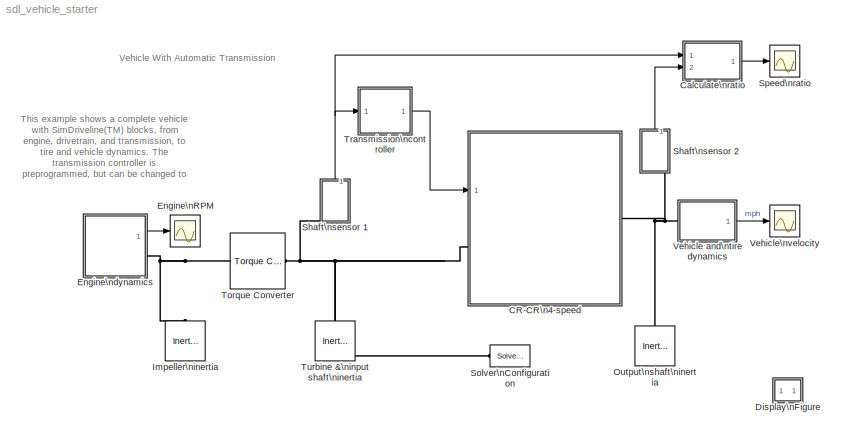
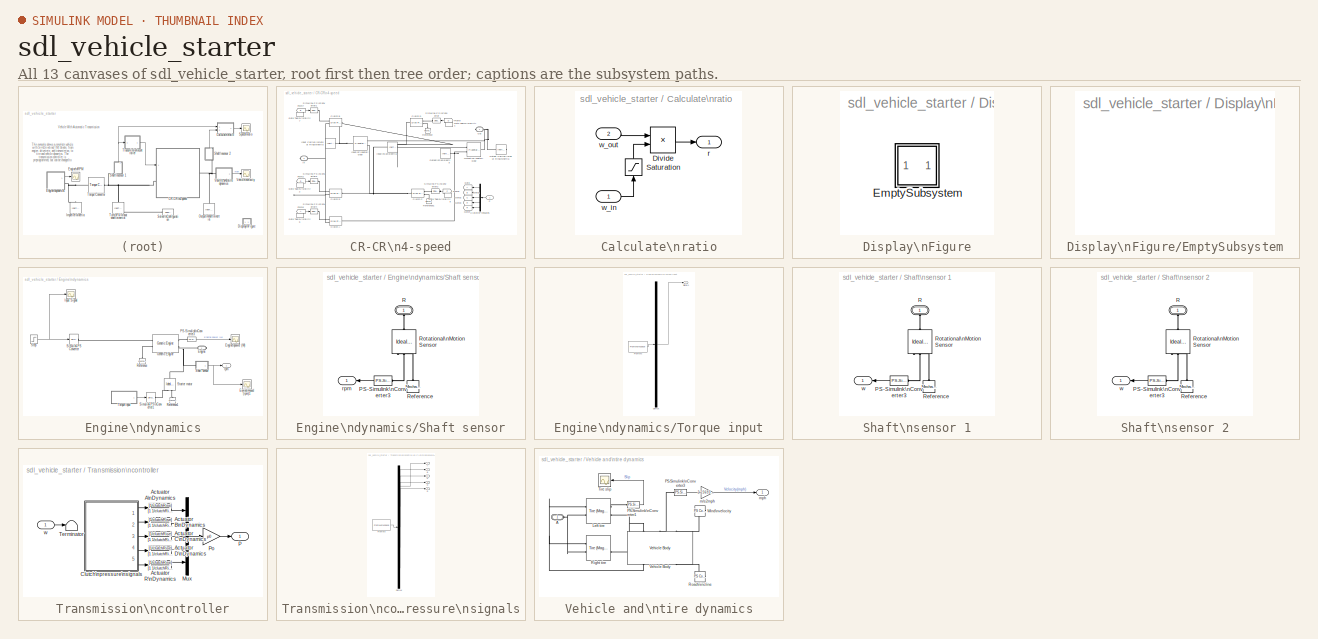
[diagram: thumbnail index - all 13 canvases of the model, root first then tree order]
MODEL sdl_vehicle_starter
KIND model
CONFIG PreLoadFcn = num_fric_surf = 6;\neff_tor_rad = 0.4;\nengagement_area = 0.0025;\npeak_normal = 0.55;\nfric_coeff = 0.5;\nclutchRise = 0.1;\nvelTol = 1e-3;\npressThresh = 0.05;\np0 = 20e5;\n\n\n
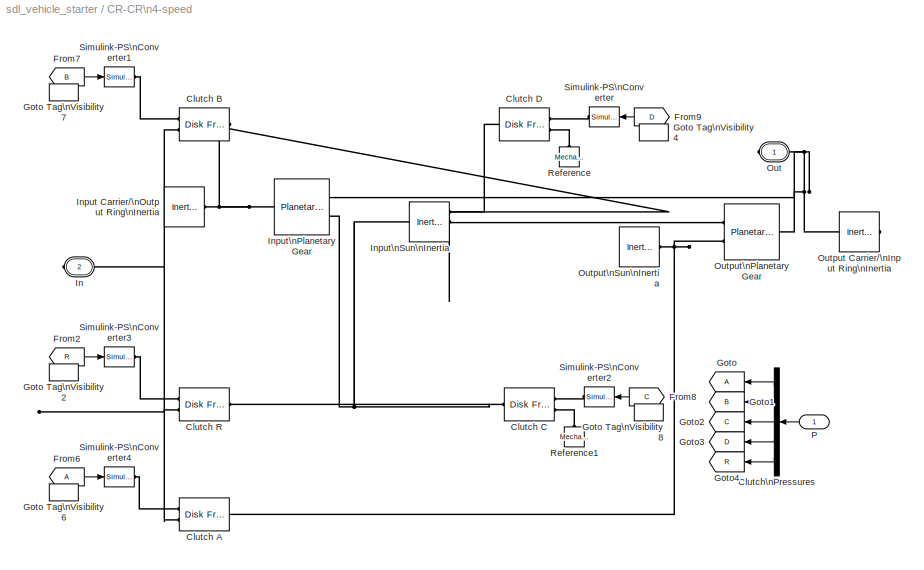
BLOCK [SubSystem] CR-CR\n4-speed
  FunctionWithSeparateData = off
  MaskDescription = This is a template for a CR-CR 4-speed transmission. Copy it to your model, open it as a subsystem, and modify it for your use.
  MaskDisplay = plot(Icon.x1,Icon.y1);\nplot(Icon.x1_1,Icon.y1_1);\nplot(Icon.x2,Icon.y2);\nplot(Icon.x3,Icon.y3);\nplot(Icon.x3_1,Icon.y3_1);\nplot(Icon.x4,Icon.y4);\nplot(Icon.x5,Icon.y5);\nplot(Icon.x6,Icon.y6);\nplot(Icon.x7,Icon.y7);\nplot(Icon.x8,Icon.y8);\nplot(Icon.x9,Icon.y9);\nplot(Icon.x10,Icon.y10);\nplot(Icon.x11,Icon.y11);\nplot(Icon.x12,Icon.y12);\nplot(Icon.x13,Icon.y13);\nplot(Icon.x14,Icon.y14);...<+594ch>
  MaskHelp = web(drive_help);
  MaskHideContents = off
  MaskIconFrame = on
  MaskIconOpaque = off
  MaskIconRotate = port
  MaskIconUnits = autoscale
  MaskInitialization = drive_preinitmask(); Icon = drive_crcrgearblock('Mask');
  MaskPortRotate = default
  MaskSelfModifiable = on
  MaskType = CR-CR 4-Speed
  MinAlgLoopOccurrences = off
  Opaque = off
  OpenFcn = open_system(gcbh,'force');
  Ports = [1, 0, 0, 0, 0, 1, 1]
  PropExecContextOutsideSubsystem = off
  RTWSystemCode = Auto
  RequestExecContextInheritance = off
  SID = 245
BLOCK [Reference] CR-CR\n4-speed/Clutch A  REF=sdl_lib/Clutches/Disk Friction Clutch
  ClassName = disk_friction_clutch
  ComponentPath = sdl.clutches.disk_friction_clutch
  ComponentVariantNames = disk_friction_clutch
  ComponentVariants = sdl.clutches.disk_friction_clutch
  LocalVarLogging = []
  Ports = [0, 0, 0, 0, 0, 2, 1]
  SID = 245:110
  SchemaVersion = 1
  SourceBlock = sdl_lib/Clutches/Disk Friction Clutch
  SourceFile = sdl.clutches.disk_friction_clutch
  SourceType = Disk Friction Clutch
  d_f = 1
  d_f_unit = 1
  d_i = 0.1
  d_i_unit = m
  d_o = 0.15
  d_o_unit = m
  friction_model = 1
  friction_model_unit = 1
  geometry_model = 1
  geometry_model_unit = 1
  initial_state_locked = 1
  initial_state_locked_unit = 1
  mu_coulomb = fric_coeff
  mu_coulomb_unit = 1
  mu_coulomb_vector = [ 0.29 0.28 0.26 0.22 0.21 0.2 0.2 0.19 0.19 0.19 0.19 0.19 ]
  mu_coulomb_vector_unit = 1
  mu_extrap_method = 1
  mu_extrap_method_unit = 1
  mu_interp_method = 1
  mu_interp_method_unit = 1
  mu_static = peak_normal
  mu_static_unit = 1
  mu_visc = 0
  mu_visc_unit = N*m/(rad/s)
  mu_w_vector = [ 0 0.1 0.2 0.3 0.4 0.5 1 2 5 10 100 1000 ]
  mu_w_vector_unit = rad/s
  nS = num_fric_surf
  nS_unit = 1
  piston_area = engagement_area
  piston_area_unit = m^2
  pressure_min = pressThresh*p0
  pressure_min_unit = Pa
  r_eff = eff_tor_rad
  r_eff_unit = m
  w_tol = velTol
  w_tol_unit = rad/s
BLOCK [Reference] CR-CR\n4-speed/Clutch B  REF=sdl_lib/Clutches/Disk Friction Clutch
  ClassName = disk_friction_clutch
  ComponentPath = sdl.clutches.disk_friction_clutch
  ComponentVariantNames = disk_friction_clutch
  ComponentVariants = sdl.clutches.disk_friction_clutch
  LocalVarLogging = []
  Ports = [0, 0, 0, 0, 0, 2, 1]
  SID = 245:107
  SchemaVersion = 1
  SourceBlock = sdl_lib/Clutches/Disk Friction Clutch
  SourceFile = sdl.clutches.disk_friction_clutch
  SourceType = Disk Friction Clutch
  d_f = 1
  d_f_unit = 1
  d_i = 0.1
  d_i_unit = m
  d_o = 0.15
  d_o_unit = m
  friction_model = 1
  friction_model_unit = 1
  geometry_model = 1
  geometry_model_unit = 1
  initial_state_locked = 0
  initial_state_locked_unit = 1
  mu_coulomb = fric_coeff
  mu_coulomb_unit = 1
  mu_coulomb_vector = [ 0.29 0.28 0.26 0.22 0.21 0.2 0.2 0.19 0.19 0.19 0.19 0.19 ]
  mu_coulomb_vector_unit = 1
  mu_extrap_method = 1
  mu_extrap_method_unit = 1
  mu_interp_method = 1
  mu_interp_method_unit = 1
  mu_static = peak_normal
  mu_static_unit = 1
  mu_visc = 0
  mu_visc_unit = N*m/(rad/s)
  mu_w_vector = [ 0 0.1 0.2 0.3 0.4 0.5 1 2 5 10 100 1000 ]
  mu_w_vector_unit = rad/s
  nS = num_fric_surf
  nS_unit = 1
  piston_area = engagement_area
  piston_area_unit = m^2
  pressure_min = pressThresh*p0
  pressure_min_unit = Pa
  r_eff = eff_tor_rad
  r_eff_unit = m
  w_tol = velTol
  w_tol_unit = rad/s
BLOCK [Reference] CR-CR\n4-speed/Clutch C  REF=sdl_lib/Clutches/Disk Friction Clutch
  ClassName = disk_friction_clutch
  ComponentPath = sdl.clutches.disk_friction_clutch
  ComponentVariantNames = disk_friction_clutch
  ComponentVariants = sdl.clutches.disk_friction_clutch
  LocalVarLogging = []
  Ports = [0, 0, 0, 0, 0, 2, 1]
  SID = 245:108
  SchemaVersion = 1
  SourceBlock = sdl_lib/Clutches/Disk Friction Clutch
  SourceFile = sdl.clutches.disk_friction_clutch
  SourceType = Disk Friction Clutch
  d_f = 1
  d_f_unit = 1
  d_i = 0.1
  d_i_unit = m
  d_o = 0.15
  d_o_unit = m
  friction_model = 1
  friction_model_unit = 1
  geometry_model = 1
  geometry_model_unit = 1
  initial_state_locked = 0
  initial_state_locked_unit = 1
  mu_coulomb = fric_coeff
  mu_coulomb_unit = 1
  mu_coulomb_vector = [ 0.29 0.28 0.26 0.22 0.21 0.2 0.2 0.19 0.19 0.19 0.19 0.19 ]
  mu_coulomb_vector_unit = 1
  mu_extrap_method = 1
  mu_extrap_method_unit = 1
  mu_interp_method = 1
  mu_interp_method_unit = 1
  mu_static = peak_normal
  mu_static_unit = 1
  mu_visc = 0
  mu_visc_unit = N*m/(rad/s)
  mu_w_vector = [ 0 0.1 0.2 0.3 0.4 0.5 1 2 5 10 100 1000 ]
  mu_w_vector_unit = rad/s
  nS = num_fric_surf
  nS_unit = 1
  piston_area = engagement_area
  piston_area_unit = m^2
  pressure_min = pressThresh*p0
  pressure_min_unit = Pa
  r_eff = eff_tor_rad
  r_eff_unit = m
  w_tol = velTol
  w_tol_unit = rad/s
BLOCK [Reference] CR-CR\n4-speed/Clutch D  REF=sdl_lib/Clutches/Disk Friction Clutch
  ClassName = disk_friction_clutch
  ComponentPath = sdl.clutches.disk_friction_clutch
  ComponentVariantNames = disk_friction_clutch
  ComponentVariants = sdl.clutches.disk_friction_clutch
  LocalVarLogging = []
  Ports = [0, 0, 0, 0, 0, 2, 1]
  SID = 245:106
  SchemaVersion = 1
  SourceBlock = sdl_lib/Clutches/Disk Friction Clutch
  SourceFile = sdl.clutches.disk_friction_clutch
  SourceType = Disk Friction Clutch
  d_f = 1
  d_f_unit = 1
  d_i = 0.1
  d_i_unit = m
  d_o = 0.15
  d_o_unit = m
  friction_model = 1
  friction_model_unit = 1
  geometry_model = 1
  geometry_model_unit = 1
  initial_state_locked = 1
  initial_state_locked_unit = 1
  mu_coulomb = fric_coeff
  mu_coulomb_unit = 1
  mu_coulomb_vector = [ 0.29 0.28 0.26 0.22 0.21 0.2 0.2 0.19 0.19 0.19 0.19 0.19 ]
  mu_coulomb_vector_unit = 1
  mu_extrap_method = 1
  mu_extrap_method_unit = 1
  mu_interp_method = 1
  mu_interp_method_unit = 1
  mu_static = peak_normal
  mu_static_unit = 1
  mu_visc = 0
  mu_visc_unit = N*m/(rad/s)
  mu_w_vector = [ 0 0.1 0.2 0.3 0.4 0.5 1 2 5 10 100 1000 ]
  mu_w_vector_unit = rad/s
  nS = num_fric_surf
  nS_unit = 1
  piston_area = engagement_area
  piston_area_unit = m^2
  pressure_min = pressThresh*p0
  pressure_min_unit = Pa
  r_eff = eff_tor_rad
  r_eff_unit = m
  w_tol = velTol
  w_tol_unit = rad/s
BLOCK [Reference] CR-CR\n4-speed/Clutch R  REF=sdl_lib/Clutches/Disk Friction Clutch
  ClassName = disk_friction_clutch
  ComponentPath = sdl.clutches.disk_friction_clutch
  ComponentVariantNames = disk_friction_clutch
  ComponentVariants = sdl.clutches.disk_friction_clutch
  LocalVarLogging = []
  Ports = [0, 0, 0, 0, 0, 2, 1]
  SID = 245:109
  SchemaVersion = 1
  SourceBlock = sdl_lib/Clutches/Disk Friction Clutch
  SourceFile = sdl.clutches.disk_friction_clutch
  SourceType = Disk Friction Clutch
  d_f = 1
  d_f_unit = 1
  d_i = 0.1
  d_i_unit = m
  d_o = 0.15
  d_o_unit = m
  friction_model = 1
  friction_model_unit = 1
  geometry_model = 1
  geometry_model_unit = 1
  initial_state_locked = 0
  initial_state_locked_unit = 1
  mu_coulomb = fric_coeff
  mu_coulomb_unit = 1
  mu_coulomb_vector = [ 0.29 0.28 0.26 0.22 0.21 0.2 0.2 0.19 0.19 0.19 0.19 0.19 ]
  mu_coulomb_vector_unit = 1
  mu_extrap_method = 1
  mu_extrap_method_unit = 1
  mu_interp_method = 1
  mu_interp_method_unit = 1
  mu_static = peak_normal
  mu_static_unit = 1
  mu_visc = 0
  mu_visc_unit = N*m/(rad/s)
  mu_w_vector = [ 0 0.1 0.2 0.3 0.4 0.5 1 2 5 10 100 1000 ]
  mu_w_vector_unit = rad/s
  nS = num_fric_surf
  nS_unit = 1
  piston_area = engagement_area
  piston_area_unit = m^2
  pressure_min = pressThresh*p0
  pressure_min_unit = Pa
  r_eff = eff_tor_rad
  r_eff_unit = m
  w_tol = velTol
  w_tol_unit = rad/s
BLOCK [Demux] CR-CR\n4-speed/Clutch\nPressures
  DisplayOption = bar
  Outputs = 5
  Ports = [1, 5]
  SID = 245:2
BLOCK [From] CR-CR\n4-speed/From2
  CloseFcn = tagdialog Close
  GotoTag = R
  SID = 245:22
  TagVisibility = scoped
BLOCK [From] CR-CR\n4-speed/From6
  CloseFcn = tagdialog Close
  GotoTag = A
  SID = 245:26
  TagVisibility = scoped
BLOCK [From] CR-CR\n4-speed/From7
  CloseFcn = tagdialog Close
  GotoTag = B
  SID = 245:27
  TagVisibility = scoped
BLOCK [From] CR-CR\n4-speed/From8
  CloseFcn = tagdialog Close
  GotoTag = C
  SID = 245:28
  TagVisibility = scoped
BLOCK [From] CR-CR\n4-speed/From9
  CloseFcn = tagdialog Close
  GotoTag = D
  SID = 245:29
  TagVisibility = scoped
BLOCK [Goto] CR-CR\n4-speed/Goto
  GotoTag = A
  SID = 245:30
  TagVisibility = scoped
BLOCK [GotoTagVisibility] CR-CR\n4-speed/Goto Tag\nVisibility2
  GotoTag = R
  SID = 245:31
BLOCK [GotoTagVisibility] CR-CR\n4-speed/Goto Tag\nVisibility4
  GotoTag = D
  SID = 245:32
BLOCK [GotoTagVisibility] CR-CR\n4-speed/Goto Tag\nVisibility6
  SID = 245:33
BLOCK [GotoTagVisibility] CR-CR\n4-speed/Goto Tag\nVisibility7
  GotoTag = B
  SID = 245:34
BLOCK [GotoTagVisibility] CR-CR\n4-speed/Goto Tag\nVisibility8
  GotoTag = C
  SID = 245:35
BLOCK [Goto] CR-CR\n4-speed/Goto1
  GotoTag = B
  SID = 245:36
  TagVisibility = scoped
BLOCK [Goto] CR-CR\n4-speed/Goto2
  GotoTag = C
  SID = 245:47
  TagVisibility = scoped
BLOCK [Goto] CR-CR\n4-speed/Goto3
  GotoTag = D
  SID = 245:48
  TagVisibility = scoped
BLOCK [Goto] CR-CR\n4-speed/Goto4
  GotoTag = R
  SID = 245:49
  TagVisibility = scoped
BLOCK [PMIOPort] CR-CR\n4-speed/In
  Port = 2
  SID = 245:67
  Side = Left
  Tag = PMCPort
BLOCK [Reference] CR-CR\n4-speed/Input Carrier//\nOutput Ring\nInertia  REF=fl_lib/Mechanical/Rotational Elements/Inertia
  ClassName = inertia
  ComponentPath = foundation.mechanical.rotational.inertia
  ComponentVariantNames = inertia
  ComponentVariants = foundation.mechanical.rotational.inertia
  LocalVarDescs = |t
  LocalVarLogging = 0
  LocalVarNames = |t
  Ports = [0, 0, 0, 0, 0, 1]
  SID = 245:84
  SchemaVersion = 1
  SourceBlock = fl_lib/Mechanical/Rotational Elements/Inertia
  SourceFile = foundation.mechanical.rotational.inertia
  SourceType = Inertia
  inertia = 1e-4
  inertia_unit = kg*m^2
  initial_velocity = 0
  initial_velocity_unit = rad/s
  t_Log = off
BLOCK [Reference] CR-CR\n4-speed/Input\nPlanetary Gear   REF=sdl_lib/Gears/Planetary Gear
  ClassName = planetary_gear
  ComponentPath = sdl.gears.planetary_gear
  ComponentVariantNames = planetary_gear
  ComponentVariants = sdl.gears.planetary_gear
  LocalVarLogging = []
  Ports = [0, 0, 0, 0, 0, 1, 2]
  SID = 245:82
  SchemaVersion = 1
  SourceBlock = sdl_lib/Gears/Planetary Gear
  SourceFile = sdl.gears.planetary_gear
  SourceType = Planetary Gear
  efficiency = [ 0.96 0.98 ]
  efficiency_unit = 1
  friction_model = 1
  friction_model_unit = 1
  mu_visc = [ 0 0 ]
  mu_visc_unit = N*m/(rad/s)
  rs_ratio = 2.2258
  rs_ratio_unit = 1
  w_thr = [ 0.01 0.01 ]
  w_thr_unit = rad/s
BLOCK [Reference] CR-CR\n4-speed/Input\nSun\nInertia  REF=fl_lib/Mechanical/Rotational Elements/Inertia
  ClassName = inertia
  ComponentPath = foundation.mechanical.rotational.inertia
  ComponentVariantNames = inertia
  ComponentVariants = foundation.mechanical.rotational.inertia
  LocalVarDescs = |t
  LocalVarLogging = 0
  LocalVarNames = |t
  Ports = [0, 0, 0, 0, 0, 1]
  SID = 245:83
  SchemaVersion = 1
  SourceBlock = fl_lib/Mechanical/Rotational Elements/Inertia
  SourceFile = foundation.mechanical.rotational.inertia
  SourceType = Inertia
  inertia = 1e-4
  inertia_unit = kg*m^2
  initial_velocity = 0
  initial_velocity_unit = rad/s
  t_Log = off
BLOCK [PMIOPort] CR-CR\n4-speed/Out
  Port = 1
  SID = 245:66
  Side = Right
  Tag = PMCPort
BLOCK [Reference] CR-CR\n4-speed/Output Carrier//\nInput Ring\nInertia   REF=fl_lib/Mechanical/Rotational Elements/Inertia
  ClassName = inertia
  ComponentPath = foundation.mechanical.rotational.inertia
  ComponentVariantNames = inertia
  ComponentVariants = foundation.mechanical.rotational.inertia
  LocalVarDescs = |t
  LocalVarLogging = 0
  LocalVarNames = |t
  Ports = [0, 0, 0, 0, 0, 1]
  SID = 245:73
  SchemaVersion = 1
  SourceBlock = fl_lib/Mechanical/Rotational Elements/Inertia
  SourceFile = foundation.mechanical.rotational.inertia
  SourceType = Inertia
  inertia = 1e-4
  inertia_unit = kg*m^2
  initial_velocity = 0
  initial_velocity_unit = rad/s
  t_Log = off
BLOCK [Reference] CR-CR\n4-speed/Output\nPlanetary Gear  REF=sdl_lib/Gears/Planetary Gear
  ClassName = planetary_gear
  ComponentPath = sdl.gears.planetary_gear
  ComponentVariantNames = planetary_gear
  ComponentVariants = sdl.gears.planetary_gear
  LocalVarLogging = []
  Ports = [0, 0, 0, 0, 0, 1, 2]
  SID = 245:71
  SchemaVersion = 1
  SourceBlock = sdl_lib/Gears/Planetary Gear
  SourceFile = sdl.gears.planetary_gear
  SourceType = Planetary Gear
  efficiency = [ 0.96 0.98 ]
  efficiency_unit = 1
  friction_model = 1
  friction_model_unit = 1
  mu_visc = [0 0]
  mu_visc_unit = N*m/(rad/s)
  rs_ratio = 1.84
  rs_ratio_unit = 1
  w_thr = [ 0.01 0.01 ]
  w_thr_unit = rad/s
BLOCK [Reference] CR-CR\n4-speed/Output\nSun\nInertia  REF=fl_lib/Mechanical/Rotational Elements/Inertia
  ClassName = inertia
  ComponentPath = foundation.mechanical.rotational.inertia
  ComponentVariantNames = inertia
  ComponentVariants = foundation.mechanical.rotational.inertia
  LocalVarDescs = |t
  LocalVarLogging = 0
  LocalVarNames = |t
  Ports = [0, 0, 0, 0, 0, 1]
  SID = 245:72
  SchemaVersion = 1
  SourceBlock = fl_lib/Mechanical/Rotational Elements/Inertia
  SourceFile = foundation.mechanical.rotational.inertia
  SourceType = Inertia
  inertia = 1e-4
  inertia_unit = kg*m^2
  initial_velocity = 0
  initial_velocity_unit = rad/s
  t_Log = off
BLOCK [Inport] CR-CR\n4-speed/P
  IconDisplay = Port number
  SID = 245:1
BLOCK [Reference] CR-CR\n4-speed/Reference  REF=fl_lib/Mechanical/Rotational Elements/Mechanical\nRotational Reference
  ClassName = reference
  ComponentPath = foundation.mechanical.rotational.reference
  ComponentVariantNames = reference
  ComponentVariants = foundation.mechanical.rotational.reference
  LocalVarDescs = |t
  LocalVarLogging = 0
  LocalVarNames = |t
  Ports = [0, 0, 0, 0, 0, 1]
  SID = 245:75
  SchemaVersion = 1
  SourceBlock = fl_lib/Mechanical/Rotational Elements/Mechanical\nRotational Reference
  SourceFile = foundation.mechanical.rotational.reference
  SourceType = Mechanical\nRotational Reference
  t_Log = off
BLOCK [Reference] CR-CR\n4-speed/Reference1  REF=fl_lib/Mechanical/Rotational Elements/Mechanical\nRotational Reference
  ClassName = reference
  ComponentPath = foundation.mechanical.rotational.reference
  ComponentVariantNames = reference
  ComponentVariants = foundation.mechanical.rotational.reference
  LocalVarDescs = |t
  LocalVarLogging = 0
  LocalVarNames = |t
  Ports = [0, 0, 0, 0, 0, 1]
  SID = 245:91
  SchemaVersion = 1
  SourceBlock = fl_lib/Mechanical/Rotational Elements/Mechanical\nRotational Reference
  SourceFile = foundation.mechanical.rotational.reference
  SourceType = Mechanical\nRotational Reference
  t_Log = off
BLOCK [Reference] CR-CR\n4-speed/Simulink-PS\nConverter  REF=nesl_utility/Simulink-PS\nConverter
  AffineConversion = off
  InputFilterTimeConstant = .001
  InputFiltering = off
  LeftPortType = input
  PhysicalDomain = network_engine_domain
  Ports = [1, 0, 0, 0, 0, 0, 1]
  RightPortType = output
  SID = 245:76
  SimscapeFilterOrder = 1
  SourceBlock = nesl_utility/Simulink-PS\nConverter
  SourceType = Simulink-PS\nConverter
  SubClassName = ps_input
  UdotUserProvided = 0
  Unit = 1
BLOCK [Reference] CR-CR\n4-speed/Simulink-PS\nConverter1  REF=nesl_utility/Simulink-PS\nConverter
  AffineConversion = off
  InputFilterTimeConstant = .001
  InputFiltering = off
  LeftPortType = input
  PhysicalDomain = network_engine_domain
  Ports = [1, 0, 0, 0, 0, 0, 1]
  RightPortType = output
  SID = 245:86
  SimscapeFilterOrder = 1
  SourceBlock = nesl_utility/Simulink-PS\nConverter
  SourceType = Simulink-PS\nConverter
  SubClassName = ps_input
  UdotUserProvided = 0
  Unit = 1
BLOCK [Reference] CR-CR\n4-speed/Simulink-PS\nConverter2  REF=nesl_utility/Simulink-PS\nConverter
  AffineConversion = off
  InputFilterTimeConstant = .001
  InputFiltering = off
  LeftPortType = input
  PhysicalDomain = network_engine_domain
  Ports = [1, 0, 0, 0, 0, 0, 1]
  RightPortType = output
  SID = 245:92
  SimscapeFilterOrder = 1
  SourceBlock = nesl_utility/Simulink-PS\nConverter
  SourceType = Simulink-PS\nConverter
  SubClassName = ps_input
  UdotUserProvided = 0
  Unit = 1
BLOCK [Reference] CR-CR\n4-speed/Simulink-PS\nConverter3  REF=nesl_utility/Simulink-PS\nConverter
  AffineConversion = off
  InputFilterTimeConstant = .001
  InputFiltering = off
  LeftPortType = input
  PhysicalDomain = network_engine_domain
  Ports = [1, 0, 0, 0, 0, 0, 1]
  RightPortType = output
  SID = 245:97
  SimscapeFilterOrder = 1
  SourceBlock = nesl_utility/Simulink-PS\nConverter
  SourceType = Simulink-PS\nConverter
  SubClassName = ps_input
  UdotUserProvided = 0
  Unit = 1
BLOCK [Reference] CR-CR\n4-speed/Simulink-PS\nConverter4  REF=nesl_utility/Simulink-PS\nConverter
  AffineConversion = off
  InputFilterTimeConstant = .001
  InputFiltering = off
  LeftPortType = input
  PhysicalDomain = network_engine_domain
  Ports = [1, 0, 0, 0, 0, 0, 1]
  RightPortType = output
  SID = 245:102
  SimscapeFilterOrder = 1
  SourceBlock = nesl_utility/Simulink-PS\nConverter
  SourceType = Simulink-PS\nConverter
  SubClassName = ps_input
  UdotUserProvided = 0
  Unit = 1
BLOCK [SubSystem] Calculate\nratio
  FunctionWithSeparateData = off
  MaskHideContents = off
  MinAlgLoopOccurrences = off
  Opaque = off
  Ports = [2, 1]
  PropExecContextOutsideSubsystem = off
  RTWSystemCode = Auto
  RequestExecContextInheritance = off
  SID = 208
BLOCK [Product] Calculate\nratio/Divide
  InputSameDT = off
  Inputs = */
  OutDataTypeStr = Inherit: Inherit via internal rule
  Ports = [2, 1]
  RndMeth = Floor
  SID = 211
  SaturateOnIntegerOverflow = off
BLOCK [Saturate] Calculate\nratio/Saturation
  InputPortMap = u0
  LowerLimit = 0.001
  Ports = [1, 1]
  SID = 212
  UpperLimit = inf
  ZeroCross = off
BLOCK [Outport] Calculate\nratio/r
  IconDisplay = Port number
  SID = 297
BLOCK [Inport] Calculate\nratio/w_in
  IconDisplay = Port number
  SID = 209
BLOCK [Inport] Calculate\nratio/w_out
  IconDisplay = Port number
  Port = 2
  SID = 210
BLOCK [SubSystem] Display\nFigure
  Description = Help callback for CR-CR transmission model: sdl_vehicle.mdl
  FunctionWithSeparateData = off
  MaskDisplay = image(imread('info.bmp'))
  MaskHideContents = off
  MaskIconFrame = off
  MaskIconOpaque = on
  MaskIconRotate = none
  MaskIconUnits = normalized
  MaskPortRotate = default
  MaskSelfModifiable = on
  MaskType = Help callback
  MinAlgLoopOccurrences = off
  Opaque = off
  OpenFcn = helpview([docroot '/toolbox/physmod/sdl/sdl.map'], 'sdl_vehicle_help');
  Ports = []
  PropExecContextOutsideSubsystem = off
  RTWSystemCode = Auto
  RequestExecContextInheritance = off
  SID = 316
BLOCK [SubSystem] Display\nFigure/EmptySubsystem
  FunctionWithSeparateData = off
  MaskHideContents = off
  MinAlgLoopOccurrences = off
  Opaque = off
  Ports = []
  PropExecContextOutsideSubsystem = off
  RTWSystemCode = Auto
  RequestExecContextInheritance = off
  SID = 316:1
BLOCK [Scope] Engine\nRPM
  DataFormat = StructureWithTime
  Floating = off
  MaxDataPoints = 500000
  NumInputPorts = 1
  Ports = [1]
  SID = 301
  SampleTime = 0.1
  SaveName = ScopeData1
  ShowLegends = off
  TimeRange = 150
  YMax = 4000
  YMin = 500
  ZoomMode = xonly
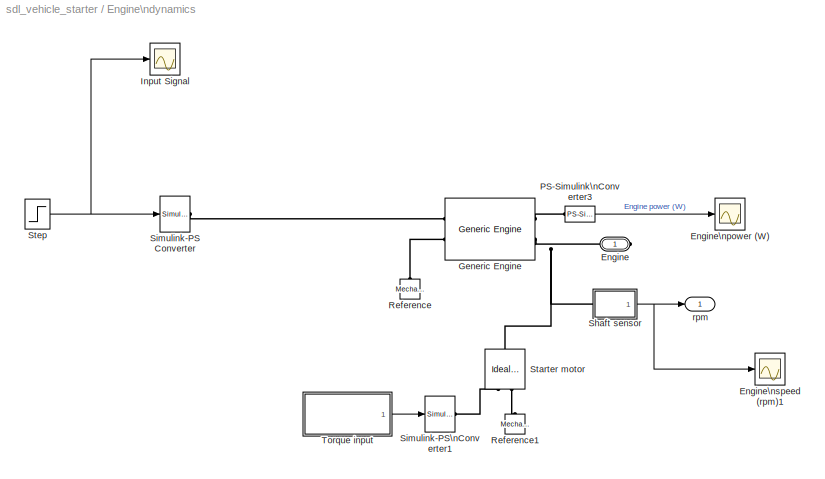
BLOCK [SubSystem] Engine\ndynamics
  FunctionWithSeparateData = off
  MaskHideContents = off
  MinAlgLoopOccurrences = off
  Opaque = off
  Ports = [0, 1, 0, 0, 0, 0, 1]
  PropExecContextOutsideSubsystem = off
  RTWSystemCode = Auto
  RequestExecContextInheritance = off
  SID = 196
BLOCK [PMIOPort] Engine\ndynamics/Engine
  Port = 1
  SID = 203
  Side = Right
BLOCK [Scope] Engine\ndynamics/Engine\npower (W)
  DataFormat = StructureWithTime
  Floating = off
  MaxDataPoints = 500000
  NumInputPorts = 1
  Ports = [1]
  SID = 302
  SampleTime = 0.1
  ShowLegends = off
  TimeRange = 150
  YMax = 150000
  YMin = -50000
  ZoomMode = xonly
BLOCK [Scope] Engine\ndynamics/Engine\nspeed (rpm)1
  DataFormat = StructureWithTime
  Floating = off
  MaxDataPoints = 500000
  NumInputPorts = 1
  Ports = [1]
  SID = 340
  SampleTime = 0.1
  SaveName = ScopeData6
  ShowLegends = off
  TimeRange = 150
  YMax = 4000
  YMin = 0
  ZoomMode = yonly
BLOCK [Reference] Engine\ndynamics/Generic Engine  REF=sdl_lib/Engines/Generic Engine
  ClassName = generic_engine
  ComponentPath = sdl.engines.generic_engine
  ComponentVariantNames = generic_engine
  ComponentVariants = sdl.engines.generic_engine
  LocalVarLogging = []
  P_max = 1.5e+5
  P_max_unit = W
  Ports = [0, 0, 0, 0, 0, 2, 2]
  SID = 270
  SchemaVersion = 1
  SourceBlock = sdl_lib/Engines/Generic Engine
  SourceFile = sdl.engines.generic_engine
  SourceType = Generic Engine
  T0 = 0
  T0_unit = 1
  engine_type = 1
  engine_type_unit = 1
  inertia = 0.08
  inertia_unit = kg*m^2
  initial_velocity = vi
  initial_velocity_unit = rpm
  interp_method = 1
  interp_method_unit = 1
  model_inertia = 1
  model_inertia_unit = 1
  model_parameterization = 1
  model_parameterization_unit = 1
  model_time_constant = 1
  model_time_constant_unit = 1
  pwr_tab = [ 2e+4 4e+4 7.8e+4 1.2e+5 1.45e+5 1.48e+5 1.25e+5 6e+4 ]
  pwr_tab_unit = W
  time_constant = 0.4
  time_constant_unit = s
  trq_tab = [ 380 380 380 380 350 280 200 80 ]
  trq_tab_unit = N*m
  w_P_max = 4.5e+3
  w_P_max_unit = rpm
  w_max = 6e+3
  w_max_unit = rpm
  w_min = 500
  w_min_unit = rpm
  w_tab = [ 500 1000 2e+3 3e+3 4e+3 5e+3 6e+3 7e+3 ]
  w_tab_unit = rpm
  w_thr = 100
  w_thr_unit = rpm
BLOCK [Scope] Engine\ndynamics/Input Signal
  DataFormat = StructureWithTime
  Floating = off
  MaxDataPoints = 500000
  NumInputPorts = 1
  Ports = [1]
  SID = 324
  SampleTime = 0.1
  SaveName = ScopeData3
  ShowLegends = off
  TimeRange = 150
  YMax = 1.5
  YMin = -0.5
  ZoomMode = yonly
BLOCK [Reference] Engine\ndynamics/PS-Simulink\nConverter3  REF=nesl_utility/PS-Simulink\nConverter
  AffineConversion = off
  LeftPortType = input
  PhysicalDomain = network_engine_domain
  Ports = [0, 1, 0, 0, 0, 1]
  RightPortType = output
  SID = 280
  SourceBlock = nesl_utility/PS-Simulink\nConverter
  SourceType = PS-Simulink\nConverter
  SubClassName = ps_output
  Unit = W
BLOCK [Reference] Engine\ndynamics/Reference  REF=fl_lib/Mechanical/Rotational Elements/Mechanical\nRotational Reference
  ClassName = reference
  ComponentPath = foundation.mechanical.rotational.reference
  ComponentVariantNames = reference
  ComponentVariants = foundation.mechanical.rotational.reference
  LocalVarDescs = |t
  LocalVarLogging = 0
  LocalVarNames = |t
  Ports = [0, 0, 0, 0, 0, 1]
  SID = 271
  SchemaVersion = 1
  SourceBlock = fl_lib/Mechanical/Rotational Elements/Mechanical\nRotational Reference
  SourceFile = foundation.mechanical.rotational.reference
  SourceType = Mechanical\nRotational Reference
  t_Log = off
BLOCK [Reference] Engine\ndynamics/Reference1  REF=fl_lib/Mechanical/Rotational Elements/Mechanical\nRotational Reference
  ClassName = reference
  ComponentPath = foundation.mechanical.rotational.reference
  ComponentVariantNames = reference
  ComponentVariants = foundation.mechanical.rotational.reference
  LocalVarDescs = |t
  LocalVarLogging = 0
  LocalVarNames = |t
  Ports = [0, 0, 0, 0, 0, 1]
  SID = 346
  SchemaVersion = 1
  SourceBlock = fl_lib/Mechanical/Rotational Elements/Mechanical\nRotational Reference
  SourceFile = foundation.mechanical.rotational.reference
  SourceType = Mechanical\nRotational Reference
  t_Log = off
BLOCK [SubSystem] Engine\ndynamics/Shaft sensor
  FunctionWithSeparateData = off
  MaskHideContents = off
  MinAlgLoopOccurrences = off
  Opaque = off
  Ports = [0, 1, 0, 0, 0, 1]
  PropExecContextOutsideSubsystem = off
  RTWSystemCode = Auto
  RequestExecContextInheritance = off
  SID = 274
BLOCK [Reference] Engine\ndynamics/Shaft sensor/PS-Simulink\nConverter3  REF=nesl_utility/PS-Simulink\nConverter
  AffineConversion = off
  LeftPortType = input
  PhysicalDomain = network_engine_domain
  Ports = [0, 1, 0, 0, 0, 1]
  RightPortType = output
  SID = 275
  SourceBlock = nesl_utility/PS-Simulink\nConverter
  SourceType = PS-Simulink\nConverter
  SubClassName = ps_output
  Unit = rpm
BLOCK [PMIOPort] Engine\ndynamics/Shaft sensor/R
  Port = 1
  SID = 278
  Side = Left
BLOCK [Reference] Engine\ndynamics/Shaft sensor/Reference  REF=fl_lib/Mechanical/Rotational Elements/Mechanical\nRotational Reference
  ClassName = reference
  ComponentPath = foundation.mechanical.rotational.reference
  ComponentVariantNames = reference
  ComponentVariants = foundation.mechanical.rotational.reference
  LocalVarDescs = |t
  LocalVarLogging = 0
  LocalVarNames = |t
  Ports = [0, 0, 0, 0, 0, 1]
  SID = 276
  SchemaVersion = 1
  SourceBlock = fl_lib/Mechanical/Rotational Elements/Mechanical\nRotational Reference
  SourceFile = foundation.mechanical.rotational.reference
  SourceType = Mechanical\nRotational Reference
  t_Log = off
BLOCK [Reference] Engine\ndynamics/Shaft sensor/Rotational\nMotion Sensor  REF=fl_lib/Mechanical/Mechanical Sensors/Ideal Rotational\nMotion Sensor
  ClassName = angular_velocity
  ComponentPath = foundation.mechanical.sensors.angular_velocity
  ComponentVariantNames = angular_velocity
  ComponentVariants = foundation.mechanical.sensors.angular_velocity
  LocalVarDescs = |w|t|phi
  LocalVarLogging = [0 0 0]
  LocalVarNames = |w|t|phi
  Ports = [0, 0, 0, 0, 0, 1, 3]
  SID = 277
  SchemaVersion = 1
  SourceBlock = fl_lib/Mechanical/Mechanical Sensors/Ideal Rotational\nMotion Sensor
  SourceFile = foundation.mechanical.sensors.angular_velocity
  SourceType = Ideal Rotational\nMotion Sensor
  offset = 0
  offset_unit = rad
  phi_Log = off
  t_Log = off
  w_Log = off
BLOCK [Outport] Engine\ndynamics/Shaft sensor/rpm
  IconDisplay = Port number
  SID = 279
BLOCK [Reference] Engine\ndynamics/Simulink-PS Converter  REF=nesl_utility/Simulink-PS\nConverter
  AffineConversion = off
  InputFilterTimeConstant = .001
  InputFiltering = off
  LeftPortType = input
  PhysicalDomain = network_engine_domain
  Ports = [1, 0, 0, 0, 0, 0, 1]
  RightPortType = output
  SID = 332
  SimscapeFilterOrder = 1
  SourceBlock = nesl_utility/Simulink-PS\nConverter
  SourceType = Simulink-PS\nConverter
  SubClassName = ps_input
  UdotUserProvided = []
  Unit = 1
BLOCK [Reference] Engine\ndynamics/Simulink-PS\nConverter1  REF=nesl_utility/Simulink-PS\nConverter
  AffineConversion = off
  InputFilterTimeConstant = 0.001
  InputFiltering = on
  LeftPortType = input
  PhysicalDomain = network_engine_domain
  Ports = [1, 0, 0, 0, 0, 0, 1]
  RightPortType = output
  SID = 347
  SimscapeFilterOrder = 1
  SourceBlock = nesl_utility/Simulink-PS\nConverter
  SourceType = Simulink-PS\nConverter
  SubClassName = ps_input
  UdotUserProvided = 1
  Unit = 1
BLOCK [Reference] Engine\ndynamics/Starter motor  REF=fl_lib/Mechanical/Mechanical Sources/Ideal Torque Source
  ClassName = torque
  ComponentPath = foundation.mechanical.sources.torque
  ComponentVariantNames = torque
  ComponentVariants = foundation.mechanical.sources.torque
  LocalVarDescs = |w|t
  LocalVarLogging = [0 0]
  LocalVarNames = |w|t
  Ports = [0, 0, 0, 0, 0, 1, 2]
  SID = 345
  SchemaVersion = 1
  SourceBlock = fl_lib/Mechanical/Mechanical Sources/Ideal Torque Source
  SourceFile = foundation.mechanical.sources.torque
  SourceType = Ideal Torque Source
  t_Log = off
  w_Log = off
BLOCK [Step] Engine\ndynamics/Step
  SID = 331
  SampleTime = 0
  Time = 60
BLOCK [SubSystem] Engine\ndynamics/Torque input
  ClipboardFcn = sigbuilder_block('clipboard');
  CloseFcn = sigbuilder_block('close');
  ContinueFcn = sigbuilder_block('continue');
  CopyFcn = sigbuilder_block('copy');
  DeleteFcn = sigbuilder_block('delete');
  FunctionWithSeparateData = off
  LoadFcn = sigbuilder_block('load');
  MaskCapabilities = slmaskedcaps(gcbh)
  MaskDescription = Simulink:masks:SigbuilderBlock_MD
  MaskDisplay = plot(0, 0, 100, 100,[2, 2, 32, 32, 2], [68, 8, 8, 68, 68],[32, 2], [38, 38], [32, 19, 2],[53, 60, 44], [32, 17, 17, 2],[16, 16, 31, 31]);txt = getActiveGroup(gcbh);text(2, 100, txt,'verticalAlignment', 'top');
  MaskHideContents = on
  MaskIconFrame = on
  MaskIconOpaque = off
  MaskIconRotate = port
  MaskIconUnits = autoscale
  MaskInitialization = if ~strcmp(get_param(bdroot(gcbh),'SimulationStatus'),'stopped') tuvar = sigbuilder_block('maskInit'); end
  MaskPortRotate = default
  MaskSelfModifiable = on
  MaskType = Sigbuilder block
  MinAlgLoopOccurrences = off
  ModelCloseFcn = sigbuilder_block('modelClose');
  NameChangeFcn = sigbuilder_block('namechange');
  Opaque = off
  OpenFcn = sigbuilder_block('open',[69 114 550.5 399.75 ]);
  PauseFcn = sigbuilder_block('pause');
  Ports = [0, 1]
  PreSaveFcn = sigbuilder_block('preSave');
  PropExecContextOutsideSubsystem = off
  RTWSystemCode = Auto
  RequestExecContextInheritance = off
  SID = 349
  StartFcn = sigbuilder_block('start');
  StopFcn = sigbuilder_block('stop');
  Tag = STV Subsys
BLOCK [Demux] Engine\ndynamics/Torque input/Demux
  Outputs = 1
  Ports = [1, 1]
  SID = 349:1
  Tag = STV Demux
BLOCK [FromWorkspace] Engine\ndynamics/Torque input/FromWs
  SID = 349:2
  SampleTime = 0
  SigBuilderData = DataTag1
  Tag = STV FromWs
  VariableName = tuvar
  VnvData = DataTag2
  ZeroCross = on
BLOCK [Outport] Engine\ndynamics/Torque input/Signal 1
  IconDisplay = Port number
  SID = 349:3
  Tag = STV Outport
BLOCK [Outport] Engine\ndynamics/rpm
  IconDisplay = Port number
  SID = 300
BLOCK [Reference] Impeller\ninertia  REF=fl_lib/Mechanical/Rotational Elements/Inertia
  ClassName = inertia
  ComponentPath = foundation.mechanical.rotational.inertia
  ComponentVariantNames = inertia
  ComponentVariants = foundation.mechanical.rotational.inertia
  LocalVarDescs = |t
  LocalVarLogging = 0
  LocalVarNames = |t
  Ports = [0, 0, 0, 0, 0, 1]
  SID = 268
  SchemaVersion = 1
  SourceBlock = fl_lib/Mechanical/Rotational Elements/Inertia
  SourceFile = foundation.mechanical.rotational.inertia
  SourceType = Inertia
  inertia = 0.02
  inertia_unit = kg*m^2
  initial_velocity = vi
  initial_velocity_unit = rpm
  t_Log = off
BLOCK [Reference] Output\nshaft\ninertia  REF=fl_lib/Mechanical/Rotational Elements/Inertia
  ClassName = inertia
  ComponentPath = foundation.mechanical.rotational.inertia
  ComponentVariantNames = inertia
  ComponentVariants = foundation.mechanical.rotational.inertia
  LocalVarDescs = |t
  LocalVarLogging = 0
  LocalVarNames = |t
  Ports = [0, 0, 0, 0, 0, 1]
  SID = 261
  SchemaVersion = 1
  SourceBlock = fl_lib/Mechanical/Rotational Elements/Inertia
  SourceFile = foundation.mechanical.rotational.inertia
  SourceType = Inertia
  inertia = 1e-1
  inertia_unit = kg*m^2
  initial_velocity = 0
  initial_velocity_unit = rad/s
  t_Log = off
BLOCK [SubSystem] Shaft\nsensor 1
  FunctionWithSeparateData = off
  MaskHideContents = off
  MinAlgLoopOccurrences = off
  Opaque = off
  Ports = [0, 1, 0, 0, 0, 1]
  PropExecContextOutsideSubsystem = off
  RTWSystemCode = Auto
  RequestExecContextInheritance = off
  SID = 253
BLOCK [Reference] Shaft\nsensor 1/PS-Simulink\nConverter3  REF=nesl_utility/PS-Simulink\nConverter
  AffineConversion = off
  LeftPortType = input
  PhysicalDomain = network_engine_domain
  Ports = [0, 1, 0, 0, 0, 1]
  RightPortType = output
  SID = 254
  SourceBlock = nesl_utility/PS-Simulink\nConverter
  SourceType = PS-Simulink\nConverter
  SubClassName = ps_output
  Unit = rad/s
BLOCK [PMIOPort] Shaft\nsensor 1/R
  Port = 1
  SID = 257
  Side = Left
BLOCK [Reference] Shaft\nsensor 1/Reference  REF=fl_lib/Mechanical/Rotational Elements/Mechanical\nRotational Reference
  ClassName = reference
  ComponentPath = foundation.mechanical.rotational.reference
  ComponentVariantNames = reference
  ComponentVariants = foundation.mechanical.rotational.reference
  LocalVarDescs = |t
  LocalVarLogging = 0
  LocalVarNames = |t
  Ports = [0, 0, 0, 0, 0, 1]
  SID = 255
  SchemaVersion = 1
  SourceBlock = fl_lib/Mechanical/Rotational Elements/Mechanical\nRotational Reference
  SourceFile = foundation.mechanical.rotational.reference
  SourceType = Mechanical\nRotational Reference
  t_Log = off
BLOCK [Reference] Shaft\nsensor 1/Rotational\nMotion Sensor  REF=fl_lib/Mechanical/Mechanical Sensors/Ideal Rotational\nMotion Sensor
  ClassName = angular_velocity
  ComponentPath = foundation.mechanical.sensors.angular_velocity
  ComponentVariantNames = angular_velocity
  ComponentVariants = foundation.mechanical.sensors.angular_velocity
  LocalVarDescs = |w|t|phi
  LocalVarLogging = [0 0 0]
  LocalVarNames = |w|t|phi
  Ports = [0, 0, 0, 0, 0, 1, 3]
  SID = 256
  SchemaVersion = 1
  SourceBlock = fl_lib/Mechanical/Mechanical Sensors/Ideal Rotational\nMotion Sensor
  SourceFile = foundation.mechanical.sensors.angular_velocity
  SourceType = Ideal Rotational\nMotion Sensor
  offset = 0
  offset_unit = rad
  phi_Log = off
  t_Log = off
  w_Log = off
BLOCK [Outport] Shaft\nsensor 1/w
  IconDisplay = Port number
  SID = 258
BLOCK [SubSystem] Shaft\nsensor 2
  FunctionWithSeparateData = off
  MaskHideContents = off
  MinAlgLoopOccurrences = off
  Opaque = off
  Ports = [0, 1, 0, 0, 0, 1]
  PropExecContextOutsideSubsystem = off
  RTWSystemCode = Auto
  RequestExecContextInheritance = off
  SID = 247
BLOCK [Reference] Shaft\nsensor 2/PS-Simulink\nConverter3  REF=nesl_utility/PS-Simulink\nConverter
  AffineConversion = off
  LeftPortType = input
  PhysicalDomain = network_engine_domain
  Ports = [0, 1, 0, 0, 0, 1]
  RightPortType = output
  SID = 248
  SourceBlock = nesl_utility/PS-Simulink\nConverter
  SourceType = PS-Simulink\nConverter
  SubClassName = ps_output
  Unit = 1
BLOCK [PMIOPort] Shaft\nsensor 2/R
  Port = 1
  SID = 251
  Side = Left
BLOCK [Reference] Shaft\nsensor 2/Reference  REF=fl_lib/Mechanical/Rotational Elements/Mechanical\nRotational Reference
  ClassName = reference
  ComponentPath = foundation.mechanical.rotational.reference
  ComponentVariantNames = reference
  ComponentVariants = foundation.mechanical.rotational.reference
  LocalVarDescs = |t
  LocalVarLogging = 0
  LocalVarNames = |t
  Ports = [0, 0, 0, 0, 0, 1]
  SID = 249
  SchemaVersion = 1
  SourceBlock = fl_lib/Mechanical/Rotational Elements/Mechanical\nRotational Reference
  SourceFile = foundation.mechanical.rotational.reference
  SourceType = Mechanical\nRotational Reference
  t_Log = off
BLOCK [Reference] Shaft\nsensor 2/Rotational\nMotion Sensor  REF=fl_lib/Mechanical/Mechanical Sensors/Ideal Rotational\nMotion Sensor
  ClassName = angular_velocity
  ComponentPath = foundation.mechanical.sensors.angular_velocity
  ComponentVariantNames = angular_velocity
  ComponentVariants = foundation.mechanical.sensors.angular_velocity
  LocalVarDescs = |w|t|phi
  LocalVarLogging = [0 0 0]
  LocalVarNames = |w|t|phi
  Ports = [0, 0, 0, 0, 0, 1, 3]
  SID = 250
  SchemaVersion = 1
  SourceBlock = fl_lib/Mechanical/Mechanical Sensors/Ideal Rotational\nMotion Sensor
  SourceFile = foundation.mechanical.sensors.angular_velocity
  SourceType = Ideal Rotational\nMotion Sensor
  offset = 0
  offset_unit = rad
  phi_Log = off
  t_Log = off
  w_Log = off
BLOCK [Outport] Shaft\nsensor 2/w
  IconDisplay = Port number
  SID = 252
BLOCK [Reference] Solver\nConfiguration  REF=nesl_utility/Solver\nConfiguration
  Accelerate = off
  DelaysMemoryBudget = 1024
  DoDC = off
  DoFixedCost = off
  LeftPortType = input
  LinearAlgebra = Sparse
  LocalSolverChoice = NE_BACKWARD_EULER_ADVANCER
  LocalSolverSampleTime = 0.001
  MaxModeIter = 2
  MaxNonlinIter = 3
  PhysicalDomain = network_engine_domain
  Ports = [0, 0, 0, 0, 0, 0, 1]
  Profile = off
  ResidualTolerance = 1e-9
  RightPortType = generic
  SID = 260
  SourceBlock = nesl_utility/Solver\nConfiguration
  SourceType = Solver\nConfiguration
  SubClassName = solver
  UseCustomDae = off
  UseLocalSampling = off
  UseLocalSolver = off
BLOCK [Scope] Speed\nratio
  DataFormat = StructureWithTime
  Floating = off
  MaxDataPoints = 500000
  NumInputPorts = 1
  Ports = [1]
  SID = 295
  SampleTime = 0.1
  SaveName = ScopeData5
  ShowLegends = off
  TimeRange = 150
  YMax = 1.5
  YMin = 0
BLOCK [Reference] Torque Converter  REF=sdl_lib/Couplings & Drives/Torque Converter
  ClassName = torque_converter
  ComponentPath = sdl.couplings.torque_converter
  ComponentVariantNames = torque_converter
  ComponentVariants = sdl.couplings.torque_converter
  LocalVarDescs = |Static torque on impeller shaft (N*m)|Transient torque on impeller shaft (N*m)|Static torque ratio|Instant torque ratio|Torque on turbine shaft (N*m)|Angular velocity of impeller shaft (rad/s)|Angular velocity of turbine shaft (rad/s)|Power on impeller shaft (W)|Power on turbine shaft (W)|Power loss (W)|Efficiency)
  LocalVarLogging = [0 0 0 0 0 0 0 0 0 0 0]
  LocalVarNames = |trq_imp_s|trq_imp|N_t|trq_ratio_inst|trq_trb|w_imp|w_trb|power_imp|power_trb|power_loss|efficiency
  Ports = [0, 0, 0, 0, 0, 1, 1]
  SID = 269
  SchemaVersion = 1
  SourceBlock = sdl_lib/Couplings & Drives/Torque Converter
  SourceFile = sdl.couplings.torque_converter
  SourceType = Torque Converter
  cf_vector = [12.2938 12.8588 13.1452 13.6285 14.6163 16.2675 19.3503 22.1046 29.9986 50.00]
  cf_vector_parameterization = 1
  cf_vector_parameterization_unit = 1
  cf_vector_reference_speed = 1
  cf_vector_reference_speed_unit = 1
  cf_vector_sq = 1e-3*[ 6.616 6.048 5.787 5.384 4.681 3.779 2.671 2.047 1.111 0.400]
  cf_vector_sq_unit = N*m/(rad/s)^2
  cf_vector_unit = (rad/s)/(N*m)^0.5
  efficiency_Log = off
  extrap_method = 1
  extrap_method_unit = 1
  initial_trq_ratio = 0
  initial_trq_ratio_unit = 1
  interp_method = 1
  interp_method_unit = 1
  model_lag = 0
  model_lag_unit = 1
  n_vector = [0 0.50 0.60 0.70 0.80 0.87 0.92 0.94 0.96 0.97]
  n_vector_unit = 1
  power_imp_Log = off
  power_loss_Log = off
  power_trb_Log = off
  tau = 0.02
  tau_unit = s
  torque_ratio_Log = off
  trq_imp_Log = off
  trq_imp_s_Log = off
  trq_ratio_inst_Log = off
  trq_trb_Log = off
  trq_vector = [2.2320 1.5462 1.4058 1.2746 1.1528 1.0732 1.0192 0.9983 0.9983 0.9983]
  trq_vector_unit = 1
  w_imp_Log = off
  w_trb_Log = off
BLOCK [SubSystem] Transmission\ncontroller
  FunctionWithSeparateData = off
  MaskHideContents = off
  MinAlgLoopOccurrences = off
  Opaque = off
  Ports = [1, 1]
  PropExecContextOutsideSubsystem = off
  RTWSystemCode = Auto
  RequestExecContextInheritance = off
  SID = 215
BLOCK [TransferFcn] Transmission\ncontroller/Actuator A\nDynamics
  Denominator = [1 1/clutchRise]
  Numerator = [1/clutchRise]
  SID = 217
BLOCK [TransferFcn] Transmission\ncontroller/Actuator B\nDynamics
  Denominator = [1 1/clutchRise]
  Numerator = [1/clutchRise]
  SID = 218
BLOCK [TransferFcn] Transmission\ncontroller/Actuator C\nDynamics
  Denominator = [1 1/clutchRise]
  Numerator = [1/clutchRise]
  SID = 219
BLOCK [TransferFcn] Transmission\ncontroller/Actuator D\nDynamics
  Denominator = [1 1/clutchRise]
  Numerator = [1/clutchRise]
  SID = 220
BLOCK [TransferFcn] Transmission\ncontroller/Actuator R\nDynamics
  Denominator = [1 1/clutchRise]
  Numerator = [1/clutchRise]
  SID = 221
BLOCK [SubSystem] Transmission\ncontroller/Clutch\npressure\nsignals
  ClipboardFcn = sigbuilder_block('clipboard');
  CloseFcn = sigbuilder_block('close');
  ContinueFcn = sigbuilder_block('continue')
  CopyFcn = sigbuilder_block('copy');
  DeleteFcn = sigbuilder_block('delete');
  FunctionWithSeparateData = off
  LoadFcn = sigbuilder_block('load');
  MaskDescription = Sigbuilder GUI
  MaskDisplay = plot(0, 0, 100, 100,[2, 2, 32, 32, 2], [68, 8, 8, 68, 68],[32, 2], [38, 38], [32, 19, 2],[53, 60, 44], [32, 17, 17, 2],[16, 16, 31, 31]);txt = getActiveGroup(gcbh);,text(2, 88, txt);
  MaskHideContents = on
  MaskIconFrame = on
  MaskIconOpaque = off
  MaskIconRotate = port
  MaskIconUnits = autoscale
  MaskInitialization = if ~strcmp(get_param(bdroot(gcbh),'SimulationStatus'),'stopped') tuvar = sigbuilder_block('maskInit'); end
  MaskPortRotate = default
  MaskType = Sigbuilder block
  MinAlgLoopOccurrences = off
  ModelCloseFcn = sigbuilder_block('modelClose');
  NameChangeFcn = sigbuilder_block('namechange');
  Opaque = off
  OpenFcn = sigbuilder_block('open',[35.25 309 504 456.75 ]);
  PauseFcn = sigbuilder_block('pause')
  Ports = [0, 5]
  PreSaveFcn = sigbuilder_block('preSave');
  PropExecContextOutsideSubsystem = off
  RTWSystemCode = Auto
  RequestExecContextInheritance = off
  SID = 222
  StartFcn = sigbuilder_block('start');
  StopFcn = sigbuilder_block('stop');
  Tag = STV Subsys
BLOCK [Outport] Transmission\ncontroller/Clutch\npressure\nsignals/A
  IconDisplay = Port number
  SID = 225
  Tag = STV Outport
BLOCK [Outport] Transmission\ncontroller/Clutch\npressure\nsignals/B
  IconDisplay = Port number
  Port = 2
  SID = 226
  Tag = STV Outport
BLOCK [Outport] Transmission\ncontroller/Clutch\npressure\nsignals/C
  IconDisplay = Port number
  Port = 3
  SID = 227
  Tag = STV Outport
BLOCK [Outport] Transmission\ncontroller/Clutch\npressure\nsignals/D
  IconDisplay = Port number
  Port = 4
  SID = 228
  Tag = STV Outport
BLOCK [Demux] Transmission\ncontroller/Clutch\npressure\nsignals/Demux
  Outputs = 5
  Ports = [1, 5]
  SID = 223
  Tag = STV Demux
BLOCK [FromWorkspace] Transmission\ncontroller/Clutch\npressure\nsignals/FromWs
  SID = 224
  SampleTime = 0
  SigBuilderData = DataTag3
  Tag = STV FromWs
  VariableName = tuvar
  VnvData = DataTag4
BLOCK [Outport] Transmission\ncontroller/Clutch\npressure\nsignals/R
  IconDisplay = Port number
  Port = 5
  SID = 229
  Tag = STV Outport
BLOCK [Mux] Transmission\ncontroller/Mux
  DisplayOption = bar
  Inputs = 5
  Ports = [5, 1]
  SID = 230
BLOCK [Outport] Transmission\ncontroller/P
  IconDisplay = Port number
  SID = 232
BLOCK [Gain] Transmission\ncontroller/Po
  Gain = p0
  OutDataTypeStr = Inherit: Inherit via internal rule
  ParamDataTypeStr = Inherit: Inherit via internal rule
  SID = 246
  SaturateOnIntegerOverflow = off
BLOCK [Terminator] Transmission\ncontroller/Terminator
  SID = 231
BLOCK [Inport] Transmission\ncontroller/w
  IconDisplay = Port number
  SID = 216
BLOCK [Reference] Turbine &\ninput shaft\ninertia  REF=fl_lib/Mechanical/Rotational Elements/Inertia
  ClassName = inertia
  ComponentPath = foundation.mechanical.rotational.inertia
  ComponentVariantNames = inertia
  ComponentVariants = foundation.mechanical.rotational.inertia
  LocalVarDescs = |t
  LocalVarLogging = 0
  LocalVarNames = |t
  Ports = [0, 0, 0, 0, 0, 1]
  SID = 259
  SchemaVersion = 1
  SourceBlock = fl_lib/Mechanical/Rotational Elements/Inertia
  SourceFile = foundation.mechanical.rotational.inertia
  SourceType = Inertia
  inertia = 1e-2
  inertia_unit = kg*m^2
  initial_velocity = 0
  initial_velocity_unit = rad/s
  t_Log = off
BLOCK [SubSystem] Vehicle and\ntire dynamics
  FunctionWithSeparateData = off
  MaskHideContents = off
  MinAlgLoopOccurrences = off
  Opaque = off
  Ports = [0, 1, 0, 0, 0, 1]
  PropExecContextOutsideSubsystem = off
  RTWSystemCode = Auto
  RequestExecContextInheritance = off
  SID = 234
BLOCK [PMIOPort] Vehicle and\ntire dynamics/A
  Port = 1
  SID = 244
  Side = Left
BLOCK [Reference] Vehicle and\ntire dynamics/Left tire  REF=sdl_lib/Tires & Vehicles/Tire (Magic Formula)
  B_m = 10
  B_m_unit = 1
  C_m = 1.9
  C_m_unit = 1
  ClassName = tire_magic
  ComponentPath = sdl.tires.tire_magic
  ComponentVariantNames = tire_magic
  ComponentVariants = sdl.tires.tire_magic
  D_m = 1
  D_m_unit = 1
  E_m = 0.97
  E_m_unit = 1
  F_x1 = 3500
  F_x1_unit = N
  F_z1 = 3000
  F_z1_unit = N
  LocalVarLogging = []
  Ports = [0, 0, 0, 0, 0, 2, 2]
  SID = 283
  SchemaVersion = 1
  SourceBlock = sdl_lib/Tires & Vehicles/Tire (Magic Formula)
  SourceFile = sdl.tires.tire_magic
  SourceType = Tire (Magic Formula)
  damping = 1000
  damping_unit = N/(m/s)
  fz0 = 4e+3
  fz0_unit = N
  inertia = 1e-2
  inertia_unit = kg*m^2
  initial_velocity = 0
  initial_velocity_unit = rpm
  kappa1 = 10
  kappa1_unit = 1
  model_compliance = 0
  model_compliance_unit = 1
  model_inertia = 1
  model_inertia_unit = 1
  p_Cx = 1.685
  p_Cx_unit = 1
  p_Dx = [ 1.21 -0.037 ]
  p_Dx_unit = 1
  p_Ex = [ 0.344 0.095 -0.02 0 ]
  p_Ex_unit = 1
  p_Hx = [ -0.002 0.002 ]
  p_Hx_unit = 1
  p_Kx = [ 21.51 -0.163 0.245 ]
  p_Kx_unit = 1
  p_Vx = [ 0 0 ]
  p_Vx_unit = 1
  parameterization = 1
  parameterization_unit = 1
  r_e = 0.3
  r_e_unit = m
  stiffness = 1e+6
  stiffness_unit = N/m
  v_tr_thr = 0.1
  v_tr_thr_unit = m/s
BLOCK [Reference] Vehicle and\ntire dynamics/PS-Simulink\nConverter1  REF=nesl_utility/PS-Simulink\nConverter
  AffineConversion = off
  LeftPortType = input
  PhysicalDomain = network_engine_domain
  Ports = [0, 1, 0, 0, 0, 1]
  RightPortType = output
  SID = 290
  SourceBlock = nesl_utility/PS-Simulink\nConverter
  SourceType = PS-Simulink\nConverter
  SubClassName = ps_output
  Unit = 1
BLOCK [Reference] Vehicle and\ntire dynamics/PS-Simulink\nConverter3  REF=nesl_utility/PS-Simulink\nConverter
  AffineConversion = off
  LeftPortType = input
  PhysicalDomain = network_engine_domain
  Ports = [0, 1, 0, 0, 0, 1]
  RightPortType = output
  SID = 286
  SourceBlock = nesl_utility/PS-Simulink\nConverter
  SourceType = PS-Simulink\nConverter
  SubClassName = ps_output
  Unit = m/s
BLOCK [Reference] Vehicle and\ntire dynamics/Right tire  REF=sdl_lib/Tires & Vehicles/Tire (Magic Formula)
  B_m = 10
  B_m_unit = 1
  C_m = 1.9
  C_m_unit = 1
  ClassName = tire_magic
  ComponentPath = sdl.tires.tire_magic
  ComponentVariantNames = tire_magic
  ComponentVariants = sdl.tires.tire_magic
  D_m = 1
  D_m_unit = 1
  E_m = 0.97
  E_m_unit = 1
  F_x1 = 3500
  F_x1_unit = N
  F_z1 = 3000
  F_z1_unit = N
  LocalVarLogging = []
  Ports = [0, 0, 0, 0, 0, 2, 2]
  SID = 294
  SchemaVersion = 1
  SourceBlock = sdl_lib/Tires & Vehicles/Tire (Magic Formula)
  SourceFile = sdl.tires.tire_magic
  SourceType = Tire (Magic Formula)
  damping = 1000
  damping_unit = N/(m/s)
  fz0 = 4e+3
  fz0_unit = N
  inertia = 1e-2
  inertia_unit = kg*m^2
  initial_velocity = 0
  initial_velocity_unit = rpm
  kappa1 = 10
  kappa1_unit = 1
  model_compliance = 0
  model_compliance_unit = 1
  model_inertia = 1
  model_inertia_unit = 1
  p_Cx = 1.685
  p_Cx_unit = 1
  p_Dx = [ 1.21 -0.037 ]
  p_Dx_unit = 1
  p_Ex = [ 0.344 0.095 -0.02 0 ]
  p_Ex_unit = 1
  p_Hx = [ -0.002 0.002 ]
  p_Hx_unit = 1
  p_Kx = [ 21.51 -0.163 0.245 ]
  p_Kx_unit = 1
  p_Vx = [ 0 0 ]
  p_Vx_unit = 1
  parameterization = 1
  parameterization_unit = 1
  r_e = 0.3
  r_e_unit = m
  stiffness = 1e+6
  stiffness_unit = N/m
  v_tr_thr = 0.1
  v_tr_thr_unit = m/s
BLOCK [Reference] Vehicle and\ntire dynamics/Road\nincline  REF=fl_lib/Physical Signals/Sources/PS Constant
  ClassName = constant
  ComponentPath = foundation.physical_signal.sources.constant
  ComponentVariantNames = constant
  ComponentVariants = foundation.physical_signal.sources.constant
  LocalVarLogging = []
  Ports = [0, 0, 0, 0, 0, 0, 1]
  SID = 284
  SchemaVersion = 1
  SourceBlock = fl_lib/Physical Signals/Sources/PS Constant
  SourceFile = foundation.physical_signal.sources.constant
  SourceType = PS Constant
  constant = 0
  constant_unit = 1
BLOCK [Scope] Vehicle and\ntire dynamics/Tire slip
  DataFormat = StructureWithTime
  Floating = off
  MaxDataPoints = 500000
  NumInputPorts = 1
  Ports = [1]
  SID = 293
  SampleTime = 0.1
  SaveName = ScopeData4
  ShowLegends = off
  YMax = 0.1
  YMin = 0
BLOCK [Reference] Vehicle and\ntire dynamics/Vehicle Body  REF=sdl_lib/Tires & Vehicles/Vehicle Body
  Cd = 0.4
  Cd_unit = 1
  ClassName = vehicle_body
  ComponentPath = sdl.tires.vehicle_body
  ComponentVariantNames = vehicle_body
  ComponentVariants = sdl.tires.vehicle_body
  LocalVarDescs = |v|f
  LocalVarLogging = [0 0]
  LocalVarNames = |v|f
  Ports = [0, 0, 0, 0, 0, 3, 3]
  SID = 282
  SchemaVersion = 1
  SourceBlock = sdl_lib/Tires & Vehicles/Vehicle Body
  SourceFile = sdl.tires.vehicle_body
  SourceType = Vehicle Body
  area = 3
  area_unit = m^2
  f_Log = off
  g = 9.81
  g_unit = m/s^2
  mass = 1200
  mass_unit = kg
  n_w = 2
  n_w_unit = 1
  rho = 1.18
  rho_unit = kg/m^3
  v0 = 0
  v0_unit = m/s
  v_Log = off
  x_f = 1.4
  x_f_unit = m
  x_r = 1.6
  x_r_unit = m
  y_c = 0.5
  y_c_unit = m
BLOCK [Reference] Vehicle and\ntire dynamics/Wind\nvelocity  REF=fl_lib/Physical Signals/Sources/PS Constant
  ClassName = constant
  ComponentPath = foundation.physical_signal.sources.constant
  ComponentVariantNames = constant
  ComponentVariants = foundation.physical_signal.sources.constant
  LocalVarLogging = []
  Ports = [0, 0, 0, 0, 0, 0, 1]
  SID = 285
  SchemaVersion = 1
  SourceBlock = fl_lib/Physical Signals/Sources/PS Constant
  SourceFile = foundation.physical_signal.sources.constant
  SourceType = PS Constant
  constant = 5
  constant_unit = 1
BLOCK [Gain] Vehicle and\ntire dynamics/m//s2mph
  Gain = 2.2369363
  OutDataTypeStr = Inherit: Inherit via internal rule
  ParamDataTypeStr = Inherit: Inherit via internal rule
  SID = 287
  SaturateOnIntegerOverflow = off
BLOCK [Outport] Vehicle and\ntire dynamics/mph
  IconDisplay = Port number
  SID = 298
BLOCK [Scope] Vehicle\nvelocity
  DataFormat = StructureWithTime
  Floating = off
  MaxDataPoints = 500000
  NumInputPorts = 1
  Ports = [1]
  SID = 299
  SampleTime = 0.1
  SaveName = ScopeData2
  ShowLegends = off
  YMax = 120
  YMin = 0
ANNOTATION (root): This example shows a complete vehicle\nwith SimDriveline(TM) blocks, from\nengine, drivetrain, and transmission, to\ntire and vehicle dynamics. The\ntransmission controller is\npreprogrammed, but can be changed to\nrespond to engine and vehicle behavior.
ANNOTATION (root): Vehicle With Automatic Transmission
LINE CR-CR\n4-speed/Clutch\nPressures:1 -> CR-CR\n4-speed/Goto:1
LINE CR-CR\n4-speed/Clutch\nPressures:2 -> CR-CR\n4-speed/Goto1:1
LINE CR-CR\n4-speed/Clutch\nPressures:3 -> CR-CR\n4-speed/Goto2:1
LINE CR-CR\n4-speed/Clutch\nPressures:4 -> CR-CR\n4-speed/Goto3:1
LINE CR-CR\n4-speed/Clutch\nPressures:5 -> CR-CR\n4-speed/Goto4:1
LINE CR-CR\n4-speed/From2:1 -> CR-CR\n4-speed/Simulink-PS\nConverter3:1
LINE CR-CR\n4-speed/From6:1 -> CR-CR\n4-speed/Simulink-PS\nConverter4:1
LINE CR-CR\n4-speed/From7:1 -> CR-CR\n4-speed/Simulink-PS\nConverter1:1
LINE CR-CR\n4-speed/From8:1 -> CR-CR\n4-speed/Simulink-PS\nConverter2:1
LINE CR-CR\n4-speed/From9:1 -> CR-CR\n4-speed/Simulink-PS\nConverter:1
LINE CR-CR\n4-speed/P:1 -> CR-CR\n4-speed/Clutch\nPressures:1
LINE Calculate\nratio/Divide:1 -> Calculate\nratio/r:1
LINE Calculate\nratio/Saturation:1 -> Calculate\nratio/Divide:2
LINE Calculate\nratio/w_in:1 -> Calculate\nratio/Saturation:1
LINE Calculate\nratio/w_out:1 -> Calculate\nratio/Divide:1
LINE Calculate\nratio:1 -> Speed\nratio:1
LINE Engine\ndynamics/PS-Simulink\nConverter3:1 -> Engine\ndynamics/Engine\npower (W):1
LINE Engine\ndynamics/Shaft sensor/PS-Simulink\nConverter3:1 -> Engine\ndynamics/Shaft sensor/rpm:1
NET Engine\ndynamics/Shaft sensor:1 -> Engine\ndynamics/Engine\nspeed (rpm)1:1, Engine\ndynamics/rpm:1
NET Engine\ndynamics/Step:1 -> Engine\ndynamics/Input Signal:1, Engine\ndynamics/Simulink-PS Converter:1
LINE Engine\ndynamics/Torque input/Demux:1 -> Engine\ndynamics/Torque input/Signal 1:1
LINE Engine\ndynamics/Torque input/FromWs:1 -> Engine\ndynamics/Torque input/Demux:1
LINE Engine\ndynamics/Torque input:1 -> Engine\ndynamics/Simulink-PS\nConverter1:1
LINE Engine\ndynamics:1 -> Engine\nRPM:1
LINE Shaft\nsensor 1/PS-Simulink\nConverter3:1 -> Shaft\nsensor 1/w:1
NET Shaft\nsensor 1:1 -> Calculate\nratio:1, Transmission\ncontroller:1
LINE Shaft\nsensor 2/PS-Simulink\nConverter3:1 -> Shaft\nsensor 2/w:1
LINE Shaft\nsensor 2:1 -> Calculate\nratio:2
LINE Transmission\ncontroller/Actuator A\nDynamics:1 -> Transmission\ncontroller/Mux:1
LINE Transmission\ncontroller/Actuator B\nDynamics:1 -> Transmission\ncontroller/Mux:2
LINE Transmission\ncontroller/Actuator C\nDynamics:1 -> Transmission\ncontroller/Mux:3
LINE Transmission\ncontroller/Actuator D\nDynamics:1 -> Transmission\ncontroller/Mux:4
LINE Transmission\ncontroller/Actuator R\nDynamics:1 -> Transmission\ncontroller/Mux:5
LINE Transmission\ncontroller/Clutch\npressure\nsignals/Demux:1 -> Transmission\ncontroller/Clutch\npressure\nsignals/A:1
LINE Transmission\ncontroller/Clutch\npressure\nsignals/Demux:2 -> Transmission\ncontroller/Clutch\npressure\nsignals/B:1
LINE Transmission\ncontroller/Clutch\npressure\nsignals/Demux:3 -> Transmission\ncontroller/Clutch\npressure\nsignals/C:1
LINE Transmission\ncontroller/Clutch\npressure\nsignals/Demux:4 -> Transmission\ncontroller/Clutch\npressure\nsignals/D:1
LINE Transmission\ncontroller/Clutch\npressure\nsignals/Demux:5 -> Transmission\ncontroller/Clutch\npressure\nsignals/R:1
LINE Transmission\ncontroller/Clutch\npressure\nsignals/FromWs:1 -> Transmission\ncontroller/Clutch\npressure\nsignals/Demux:1
LINE Transmission\ncontroller/Clutch\npressure\nsignals:1 -> Transmission\ncontroller/Actuator A\nDynamics:1
LINE Transmission\ncontroller/Clutch\npressure\nsignals:2 -> Transmission\ncontroller/Actuator B\nDynamics:1
LINE Transmission\ncontroller/Clutch\npressure\nsignals:3 -> Transmission\ncontroller/Actuator C\nDynamics:1
LINE Transmission\ncontroller/Clutch\npressure\nsignals:4 -> Transmission\ncontroller/Actuator D\nDynamics:1
LINE Transmission\ncontroller/Clutch\npressure\nsignals:5 -> Transmission\ncontroller/Actuator R\nDynamics:1
LINE Transmission\ncontroller/Mux:1 -> Transmission\ncontroller/Po:1
LINE Transmission\ncontroller/Po:1 -> Transmission\ncontroller/P:1
LINE Transmission\ncontroller/w:1 -> Transmission\ncontroller/Terminator:1
LINE Transmission\ncontroller:1 -> CR-CR\n4-speed:1
LINE Vehicle and\ntire dynamics/PS-Simulink\nConverter1:1 -> Vehicle and\ntire dynamics/Tire slip:1
LINE Vehicle and\ntire dynamics/PS-Simulink\nConverter3:1 -> Vehicle and\ntire dynamics/m//s2mph:1
LINE Vehicle and\ntire dynamics/m//s2mph:1 -> Vehicle and\ntire dynamics/mph:1
LINE Vehicle and\ntire dynamics:1 -> Vehicle\nvelocity:1
PLINE CR-CR\n4-speed/Clutch A:LConn1 -- CR-CR\n4-speed/Simulink-PS\nConverter4:RConn1
PNET net1: CR-CR\n4-speed/Clutch A:LConn2 -- CR-CR\n4-speed/Clutch B:LConn2 -- CR-CR\n4-speed/Clutch R:LConn2 -- CR-CR\n4-speed/In:RConn1
PNET net2: CR-CR\n4-speed/Clutch A:RConn1 -- CR-CR\n4-speed/Output\nPlanetary Gear:RConn2 -- CR-CR\n4-speed/Output\nSun\nInertia:LConn1
PLINE CR-CR\n4-speed/Clutch B:LConn1 -- CR-CR\n4-speed/Simulink-PS\nConverter1:RConn1
PNET net3: CR-CR\n4-speed/Clutch B:RConn1 -- CR-CR\n4-speed/Clutch D:RConn1 -- CR-CR\n4-speed/Input Carrier//\nOutput Ring\nInertia:LConn1 -- CR-CR\n4-speed/Input\nPlanetary Gear :LConn1 -- CR-CR\n4-speed/Output\nPlanetary Gear:RConn1
PLINE CR-CR\n4-speed/Clutch C:LConn1 -- CR-CR\n4-speed/Simulink-PS\nConverter2:RConn1
PLINE CR-CR\n4-speed/Clutch C:LConn2 -- CR-CR\n4-speed/Reference1:LConn1
PNET net4: CR-CR\n4-speed/Clutch C:RConn1 -- CR-CR\n4-speed/Clutch R:RConn1 -- CR-CR\n4-speed/Input\nPlanetary Gear :RConn2 -- CR-CR\n4-speed/Input\nSun\nInertia:LConn1
PLINE CR-CR\n4-speed/Clutch D:LConn1 -- CR-CR\n4-speed/Simulink-PS\nConverter:RConn1
PLINE CR-CR\n4-speed/Clutch D:LConn2 -- CR-CR\n4-speed/Reference:LConn1
PLINE CR-CR\n4-speed/Clutch R:LConn1 -- CR-CR\n4-speed/Simulink-PS\nConverter3:RConn1
PNET net5: CR-CR\n4-speed/Input\nPlanetary Gear :RConn1 -- CR-CR\n4-speed/Out:RConn1 -- CR-CR\n4-speed/Output Carrier//\nInput Ring\nInertia :LConn1 -- CR-CR\n4-speed/Output\nPlanetary Gear:LConn1
PNET net6: CR-CR\n4-speed:LConn1 -- Shaft\nsensor 1:LConn1 -- Solver\nConfiguration:RConn1 -- Torque Converter:RConn1 -- Turbine &\ninput shaft\ninertia:LConn1
PNET net7: CR-CR\n4-speed:RConn1 -- Output\nshaft\ninertia:LConn1 -- Shaft\nsensor 2:LConn1 -- Vehicle and\ntire dynamics:LConn1
PNET net8: Engine\ndynamics/Engine:RConn1 -- Engine\ndynamics/Generic Engine:RConn2 -- Engine\ndynamics/Shaft sensor:LConn1 -- Engine\ndynamics/Starter motor:LConn1
PLINE Engine\ndynamics/Generic Engine:LConn1 -- Engine\ndynamics/Simulink-PS Converter:RConn1
PLINE Engine\ndynamics/Generic Engine:LConn2 -- Engine\ndynamics/Reference:LConn1
PLINE Engine\ndynamics/Generic Engine:RConn1 -- Engine\ndynamics/PS-Simulink\nConverter3:LConn1
PLINE Engine\ndynamics/Reference1:LConn1 -- Engine\ndynamics/Starter motor:RConn2
PLINE Engine\ndynamics/Shaft sensor/PS-Simulink\nConverter3:LConn1 -- Engine\ndynamics/Shaft sensor/Rotational\nMotion Sensor:RConn2
PLINE Engine\ndynamics/Shaft sensor/R:RConn1 -- Engine\ndynamics/Shaft sensor/Rotational\nMotion Sensor:LConn1
PLINE Engine\ndynamics/Shaft sensor/Reference:LConn1 -- Engine\ndynamics/Shaft sensor/Rotational\nMotion Sensor:RConn1
PLINE Engine\ndynamics/Simulink-PS\nConverter1:RConn1 -- Engine\ndynamics/Starter motor:RConn1
PNET net9: Engine\ndynamics:RConn1 -- Impeller\ninertia:LConn1 -- Torque Converter:LConn1
PLINE Shaft\nsensor 1/PS-Simulink\nConverter3:LConn1 -- Shaft\nsensor 1/Rotational\nMotion Sensor:RConn2
PLINE Shaft\nsensor 1/R:RConn1 -- Shaft\nsensor 1/Rotational\nMotion Sensor:LConn1
PLINE Shaft\nsensor 1/Reference:LConn1 -- Shaft\nsensor 1/Rotational\nMotion Sensor:RConn1
PLINE Shaft\nsensor 2/PS-Simulink\nConverter3:LConn1 -- Shaft\nsensor 2/Rotational\nMotion Sensor:RConn2
PLINE Shaft\nsensor 2/R:RConn1 -- Shaft\nsensor 2/Rotational\nMotion Sensor:LConn1
PLINE Shaft\nsensor 2/Reference:LConn1 -- Shaft\nsensor 2/Rotational\nMotion Sensor:RConn1
PNET net10: Vehicle and\ntire dynamics/A:RConn1 -- Vehicle and\ntire dynamics/Left tire:LConn2 -- Vehicle and\ntire dynamics/Right tire:LConn2
PNET net11: Vehicle and\ntire dynamics/Left tire:LConn1 -- Vehicle and\ntire dynamics/Right tire:LConn1 -- Vehicle and\ntire dynamics/Vehicle Body:RConn1
PLINE Vehicle and\ntire dynamics/Left tire:RConn1 -- Vehicle and\ntire dynamics/PS-Simulink\nConverter1:LConn1
PNET net12: Vehicle and\ntire dynamics/Left tire:RConn2 -- Vehicle and\ntire dynamics/Right tire:RConn2 -- Vehicle and\ntire dynamics/Vehicle Body:LConn1
PLINE Vehicle and\ntire dynamics/PS-Simulink\nConverter3:LConn1 -- Vehicle and\ntire dynamics/Vehicle Body:LConn2
PLINE Vehicle and\ntire dynamics/Road\nincline:RConn1 -- Vehicle and\ntire dynamics/Vehicle Body:RConn3
PLINE Vehicle and\ntire dynamics/Vehicle Body:LConn3 -- Vehicle and\ntire dynamics/Wind\nvelocity:RConn1
note: NET lines group one-source signal fan-out (src -> all destinations, sorted); 1:1 wires keep LINE; PNET lines group multi-terminal physical nets as a canonical sorted terminal list (undirected conserving connections); 2-terminal nets keep the pairwise PLINE form
